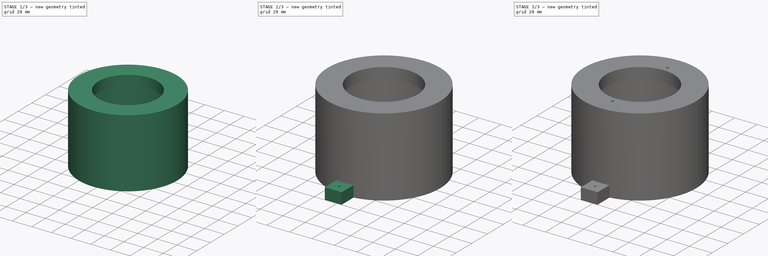
[diagram: build sequence overview — one tinted view per stage of 3, left to right]
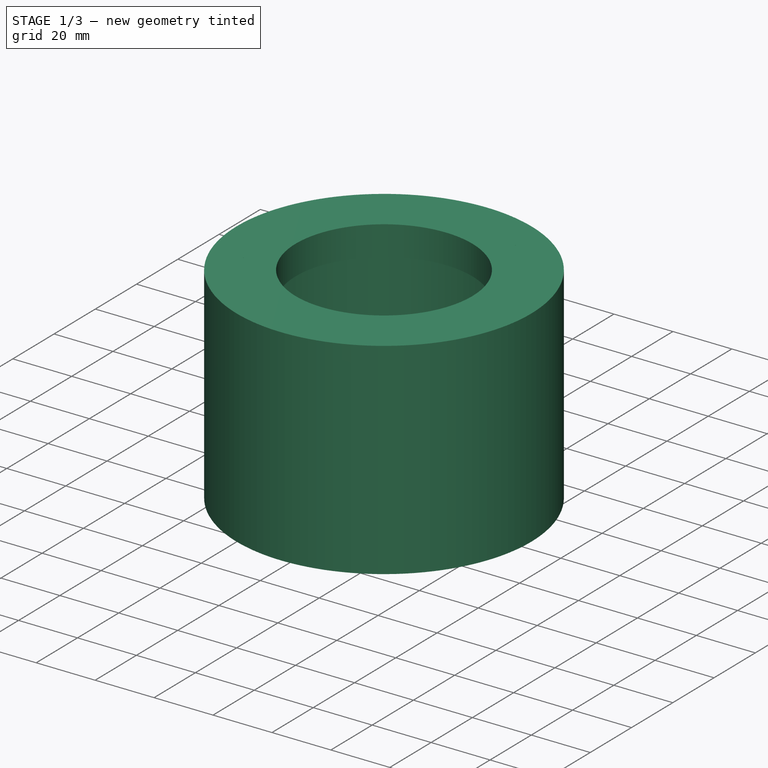
[diagram: stage 1 of 3 — iso view after this stage's code; geometry added in this stage tinted green]
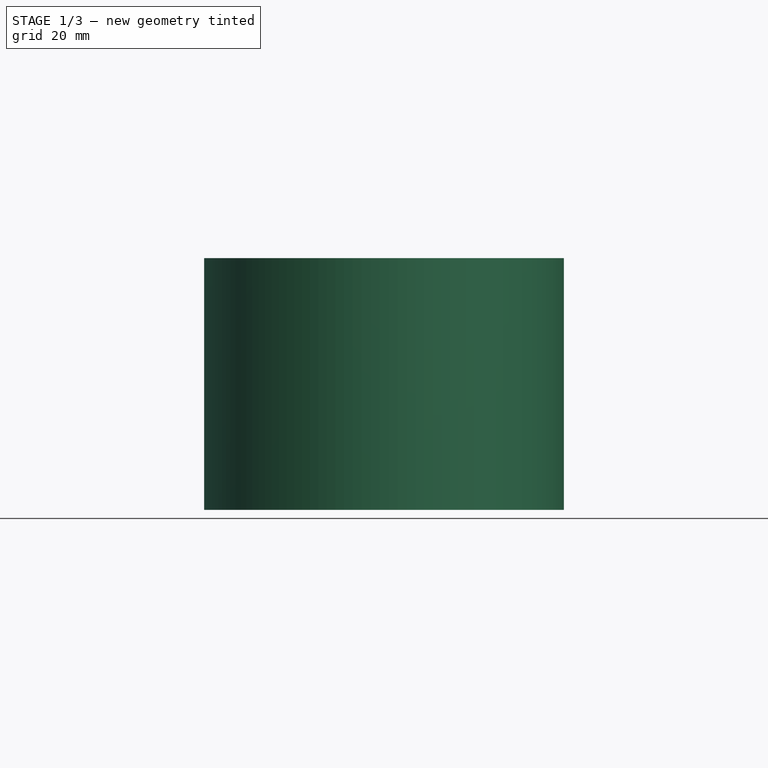
[diagram: stage 1 of 3 — front view after this stage's code; geometry added in this stage tinted green]
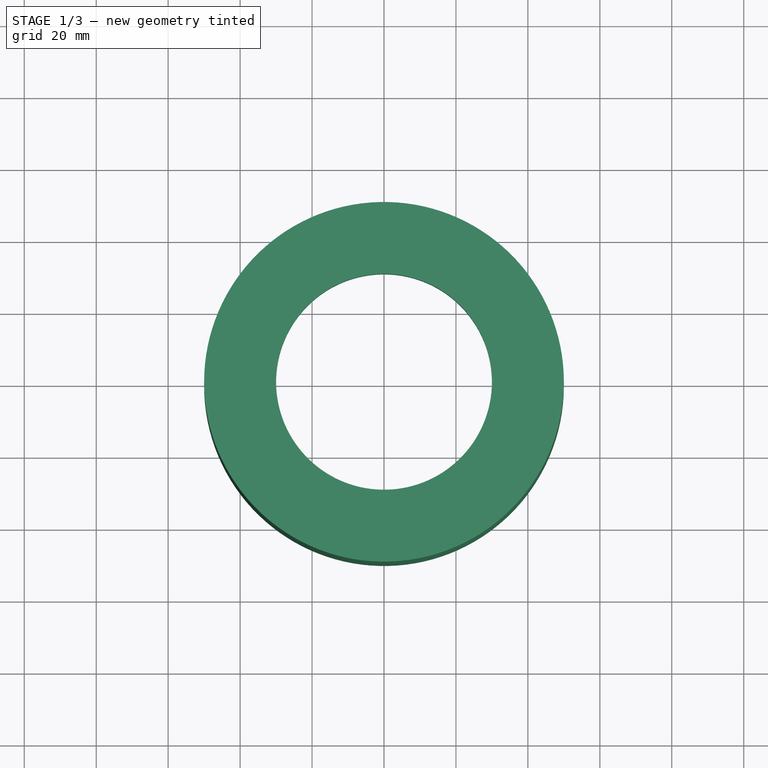
[diagram: stage 1 of 3 — top view after this stage's code; geometry added in this stage tinted green]
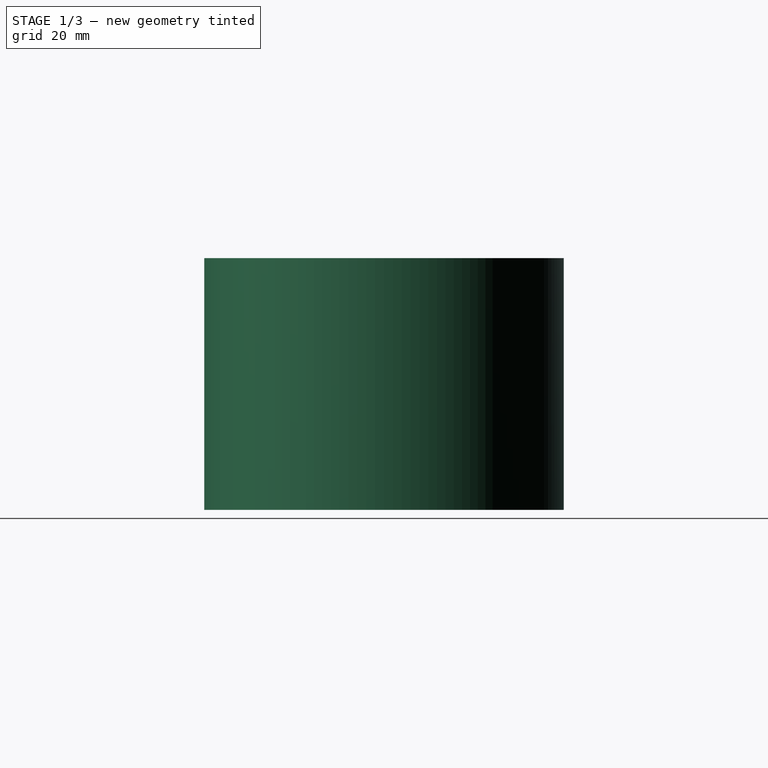
[diagram: stage 1 of 3 — right view after this stage's code; geometry added in this stage tinted green]
FCSTD DOCUMENT  (FreeCAD 0.20R29177 +426 (Git))
Label: BigRedButton
License: All rights reserved
LicenseURL: http://en.wikipedia.org/wiki/All_rights_reserved
objects: Part::FeaturePython×2, Sketcher::SketchObject×2, Part::Extrusion×2, Part::MultiFuse×2, Part::Cut×1
note: 9 computed .brp shape members not serialized (recipe doc carries the construction recipe); baked Part::Feature solids carry a one-line shape summary decoded from their .brp

FEATURE [Part::FeaturePython] Tube  # WARN: FeaturePython — macro-defined, semantics opaque (R4)
  AttacherType = Attacher::AttachEngine3D
  Height = 70
  InnerRadius = 40
  OuterRadius = 50
FEATURE [Part::FeaturePython] Tube001  # WARN: FeaturePython — macro-defined, semantics opaque (R4)
  AttacherType = Attacher::AttachEngine3D
  Height = 10
  InnerRadius = 30
  OuterRadius = 40
  Placement = pos=(0,0,60) rot=(0,0,1;0rad)
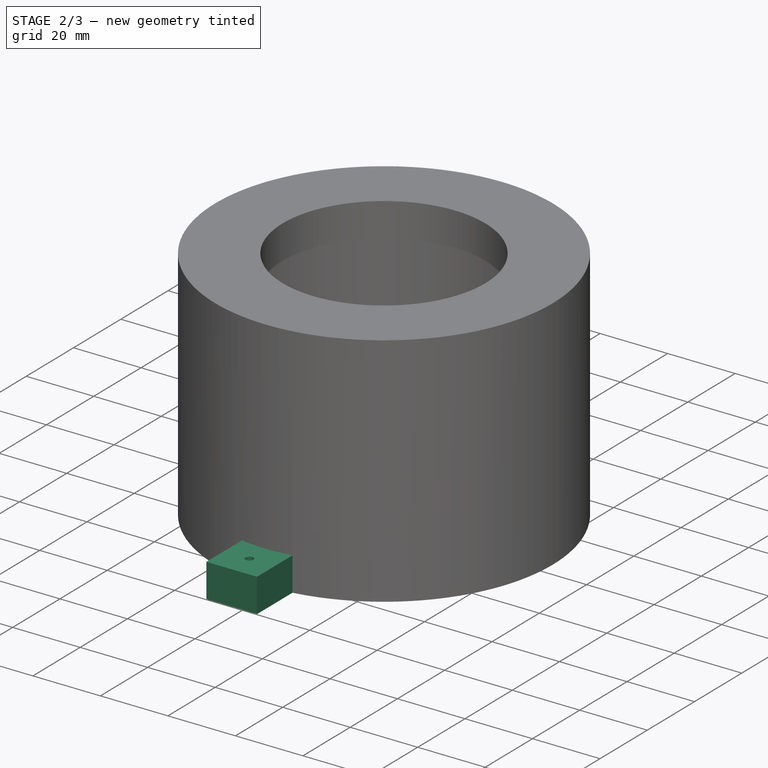
[diagram: stage 2 of 3 — iso view after this stage's code; geometry added in this stage tinted green]
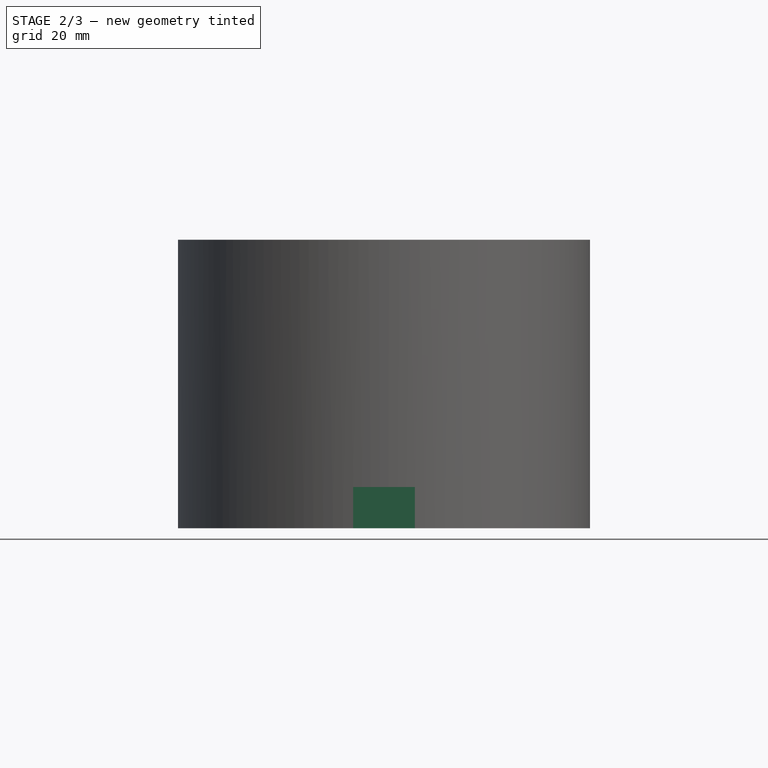
[diagram: stage 2 of 3 — front view after this stage's code; geometry added in this stage tinted green]
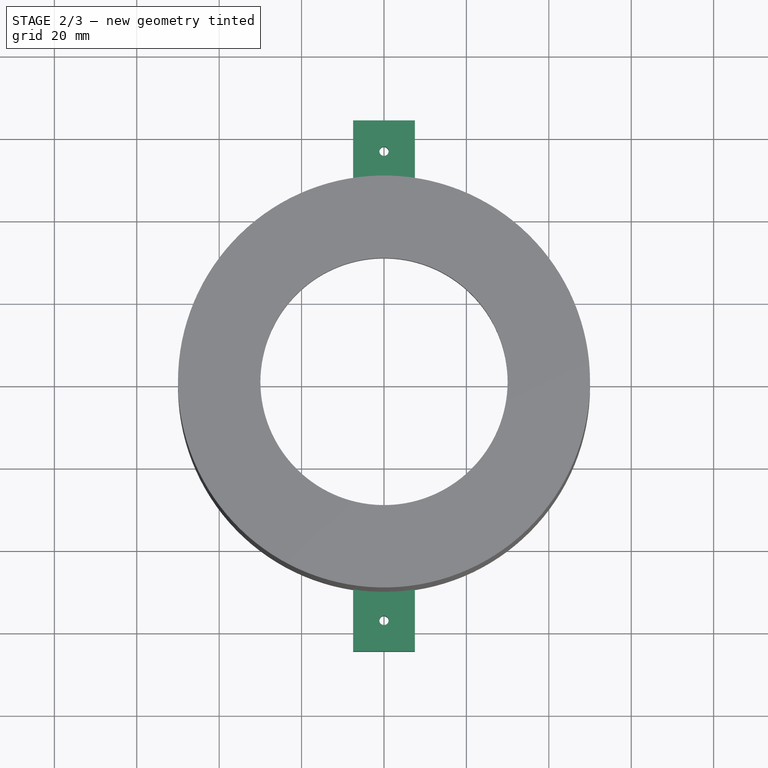
[diagram: stage 2 of 3 — top view after this stage's code; geometry added in this stage tinted green]
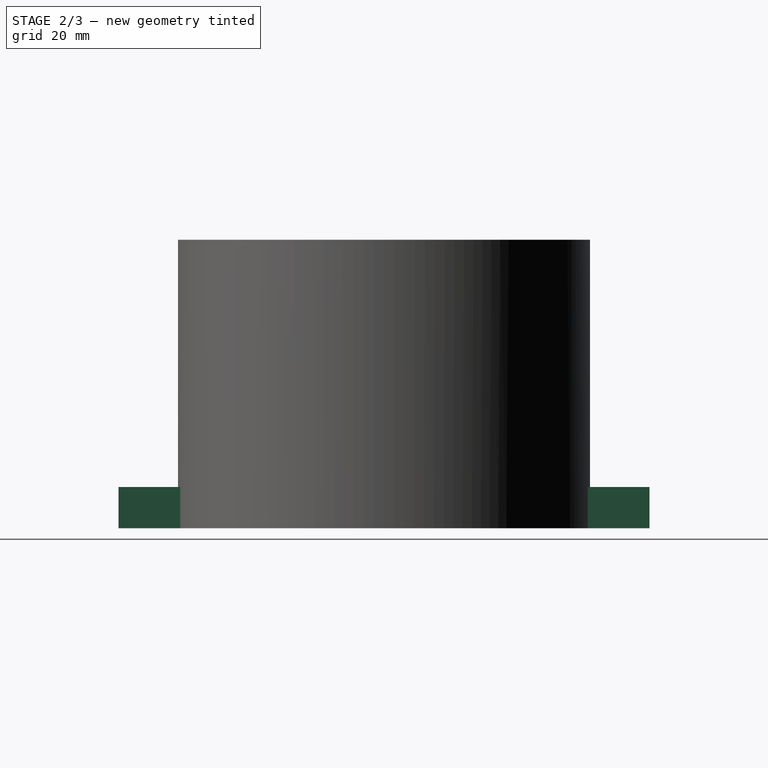
[diagram: stage 2 of 3 — right view after this stage's code; geometry added in this stage tinted green]
FEATURE [Sketcher::SketchObject] Sketch
  ExternalGeometry = -> [Tube]
  FullyConstrained = true
  MapMode = 5
  Placement = pos=(0,0,0) rot=(1,0,0;3.14159rad)
  Support = -> [Tube]
  sketch-geometry (18):
    g0: LineSegment StartX=7.5 StartY=49.4343 StartZ=0 EndX=7.5 EndY=64.4343 EndZ=0
    g1: LineSegment StartX=-7.5 StartY=64.4343 StartZ=0 EndX=-7.5 EndY=49.4343 EndZ=0
    g2: LineSegment StartX=7.5 StartY=64.4343 StartZ=0 EndX=-9.8e-15 EndY=64.4343 EndZ=0
    g3: LineSegment StartX=-9.8e-15 StartY=64.4343 StartZ=0 EndX=-7.5 EndY=64.4343 EndZ=0
    g4: LineSegment StartX=-7.5 StartY=49.4343 StartZ=0 EndX=-9.8e-15 EndY=49.4343 EndZ=0
    g5: LineSegment StartX=-9.8e-15 StartY=49.4343 StartZ=0 EndX=7.5 EndY=49.4343 EndZ=0
    g6: LineSegment StartX=-9.8e-15 StartY=64.4343 StartZ=0 EndX=-9.8e-15 EndY=56.9343 EndZ=0
    g7: LineSegment StartX=-9.8e-15 StartY=56.9343 StartZ=0 EndX=-9.8e-15 EndY=49.4343 EndZ=0
    g8: Circle CenterX=-9.8e-15 CenterY=56.9343 CenterZ=0 NormalX=0 NormalY=0 NormalZ=1 AngleXU=0 Radius=1.125
    g9: LineSegment StartX=7.5 StartY=-49.4343 StartZ=0 EndX=7.5 EndY=-64.4343 EndZ=0
    g10: LineSegment StartX=-7.5 StartY=-64.4343 StartZ=0 EndX=-7.5 EndY=-49.4343 EndZ=0
    g11: LineSegment StartX=-7.5 StartY=-49.4343 StartZ=0 EndX=8.9e-15 EndY=-49.4343 EndZ=0
    g12: LineSegment StartX=8.9e-15 StartY=-49.4343 StartZ=0 EndX=7.5 EndY=-49.4343 EndZ=0
    g13: LineSegment StartX=7.5 StartY=-64.4343 StartZ=0 EndX=8.9e-15 EndY=-64.4343 EndZ=0
    g14: LineSegment StartX=8.9e-15 StartY=-64.4343 StartZ=0 EndX=-7.5 EndY=-64.4343 EndZ=0
    g15: LineSegment StartX=8.9e-15 StartY=-64.4343 StartZ=0 EndX=8.9e-15 EndY=-56.9343 EndZ=0
    g16: LineSegment StartX=8.9e-15 StartY=-56.9343 StartZ=0 EndX=8.9e-15 EndY=-49.4343 EndZ=0
    g17: Circle CenterX=8.9e-15 CenterY=-56.9343 CenterZ=0 NormalX=0 NormalY=0 NormalZ=1 AngleXU=0 Radius=1.125
  constraints (50):
    c: Coincident(g5,g0)
    c: Coincident(g0,g2)
    c: Coincident(g3,g1)
    c: Coincident(g1,g4)
    c: Vertical(g0)
    c: Vertical(g1)
    c: PointOnObject(g4,g-3)
    c: PointOnObject(g5,g-3)
    c: Distance(g1) = 15
    c: Coincident(g2,g3)
    c: Horizontal(g2)
    c: Horizontal(g3)
    c: Coincident(g4,g5)
    c: Horizontal(g4)
    c: Horizontal(g5)
    c: Coincident(g6,g2)
    c: Coincident(g7,g4)
    c: Equal(g4,g5)
    c: Coincident(g6,g7)
    c: Vertical(g6)
    c: Vertical(g7)
    c: Equal(g6,g7)
    c: Coincident(g8,g6)
    c: Diameter(g8) = 2.25
    c: Distance(g3) = 7.5
    c: Coincident(g12,g9)
    c: Coincident(g9,g13)
    c: Coincident(g14,g10)
    c: Coincident(g10,g11)
    c: Vertical(g9)
    c: Vertical(g10)
    c: PointOnObject(g11,g-3)
    c: PointOnObject(g12,g-3)
    c: Distance(g9) = 15
    c: Coincident(g11,g12)
    c: Horizontal(g11)
    c: Horizontal(g12)
    c: Coincident(g13,g14)
    c: Horizontal(g13)
    c: Horizontal(g14)
    c: Coincident(g15,g13)
    c: Coincident(g16,g11)
    c: Coincident(g15,g16)
    c: Vertical(g15)
    c: Vertical(g16)
    c: Equal(g16,g15)
    c: Equal(g13,g14)
    c: Distance(g13) = 7.5
    c: Coincident(g17,g15)
    c: Diameter(g17) = 2.25
FEATURE [Part::Extrusion] Extrude
  Base = -> Sketch
  Dir = (0,0,-1)
  DirMode = 2
  FaceMakerClass = Part::FaceMakerBullseye
  LengthFwd = 0
  LengthRev = 10
  Solid = true
  Symmetric = false
FEATURE [Part::MultiFuse] Fusion
  Shapes = -> [Tube,Tube001]
FEATURE [Part::MultiFuse] Fusion001  label="BigRedButtonMount"
  Shapes = -> [Fusion,Extrude]
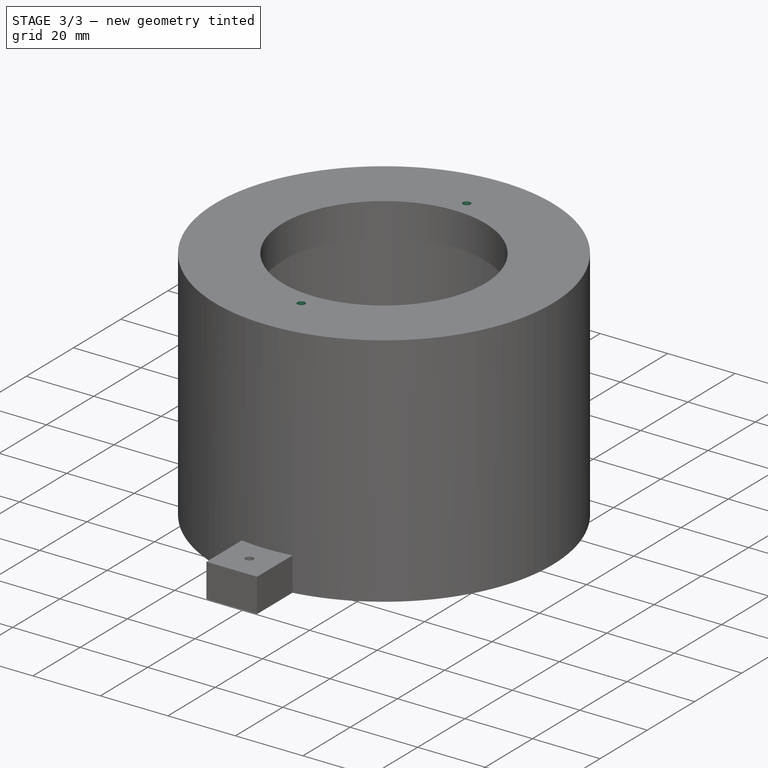
[diagram: stage 3 of 3 — iso view after this stage's code; geometry added in this stage tinted green]
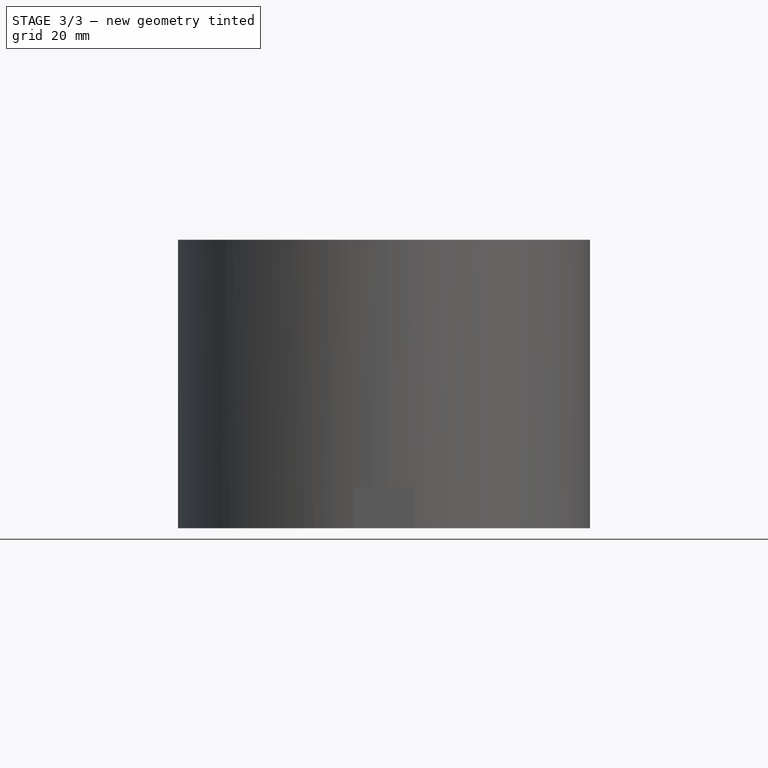
[diagram: stage 3 of 3 — front view after this stage's code; geometry added in this stage tinted green]
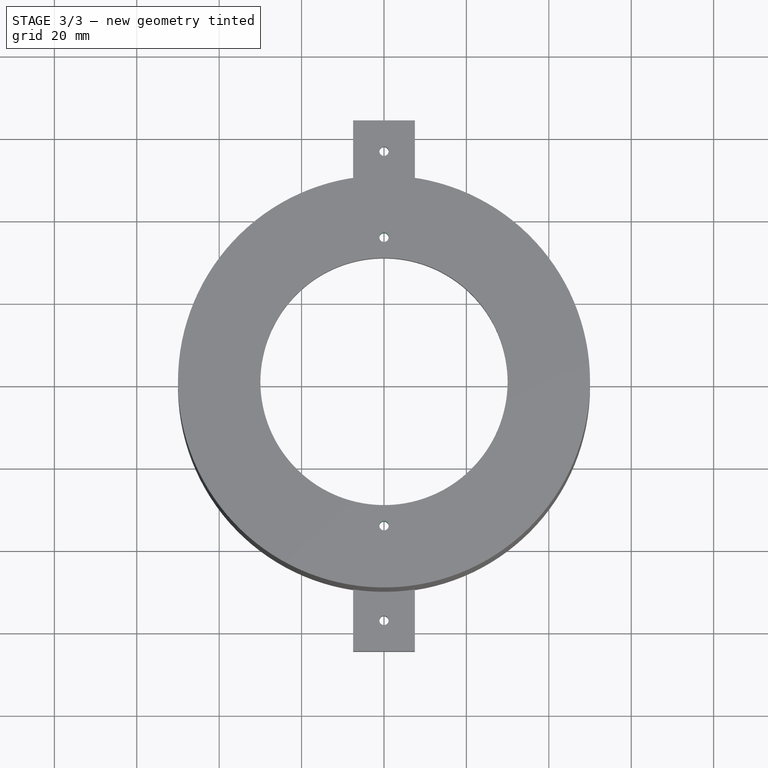
[diagram: stage 3 of 3 — top view after this stage's code; geometry added in this stage tinted green]
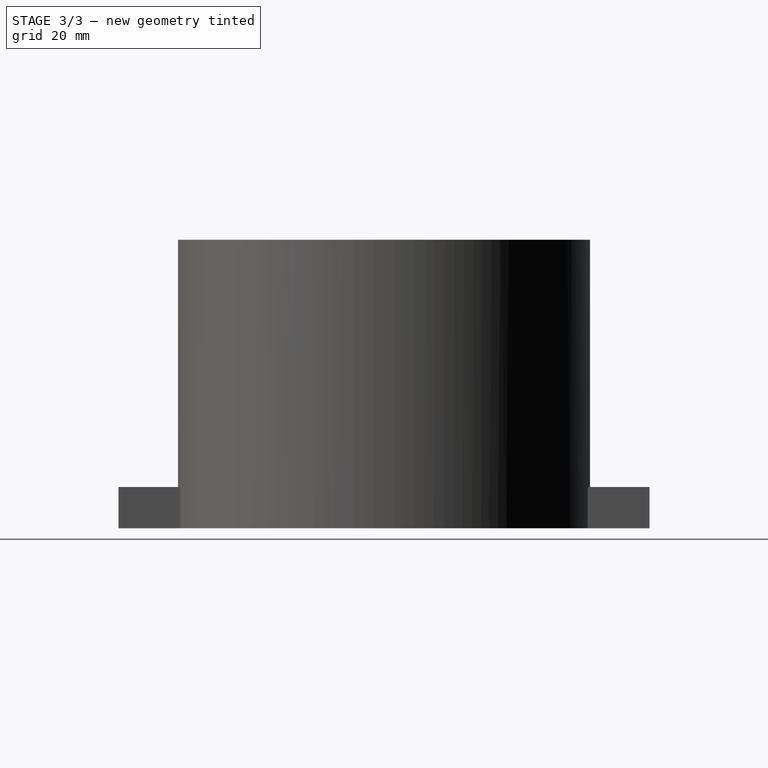
[diagram: stage 3 of 3 — right view after this stage's code; geometry added in this stage tinted green]
FEATURE [Sketcher::SketchObject] Sketch001
  ExternalGeometry = -> [Fusion001]
  FullyConstrained = true
  MapMode = 5
  Placement = pos=(0,0,70) rot=(0,0,1;0rad)
  Support = -> [Fusion001]
  sketch-geometry (6):
    g0: Circle CenterX=0 CenterY=35 CenterZ=0 NormalX=0 NormalY=0 NormalZ=1 AngleXU=0 Radius=1.125
    g1: LineSegment StartX=0 StartY=35 StartZ=0 EndX=0 EndY=40 EndZ=0
    g2: LineSegment StartX=0 StartY=35 StartZ=0 EndX=0 EndY=30 EndZ=0
    g3: Circle CenterX=0 CenterY=-35 CenterZ=0 NormalX=0 NormalY=0 NormalZ=1 AngleXU=0 Radius=1.125
    g4: LineSegment StartX=0 StartY=-35 StartZ=0 EndX=0 EndY=-30 EndZ=0
    g5: LineSegment StartX=0 StartY=-35 StartZ=0 EndX=0 EndY=-40 EndZ=0
  constraints (18):
    c: PointOnObject(g0,g-2)
    c: Coincident(g1,g0)
    c: PointOnObject(g1,g-3)
    c: Vertical(g1)
    c: Coincident(g2,g0)
    c: PointOnObject(g2,g-4)
    c: Vertical(g2)
    c: Equal(g1,g2)
    c: PointOnObject(g3,g-2)
    c: Coincident(g4,g3)
    c: PointOnObject(g4,g-4)
    c: Vertical(g4)
    c: Coincident(g5,g3)
    c: PointOnObject(g5,g-3)
    c: Vertical(g5)
    c: Equal(g5,g4)
    c: Diameter(g3) = 2.25
    c: Diameter(g0) = 2.25
FEATURE [Part::Extrusion] Extrude001
  Base = -> Sketch001
  Dir = (0,0,1)
  DirMode = 2
  FaceMakerClass = Part::FaceMakerBullseye
  LengthFwd = 0
  LengthRev = 10
  Solid = true
  Symmetric = false
FEATURE [Part::Cut] Cut  label="BigRedButtonMount001"
  Base = -> Fusion001
  Tool = -> Extrude001
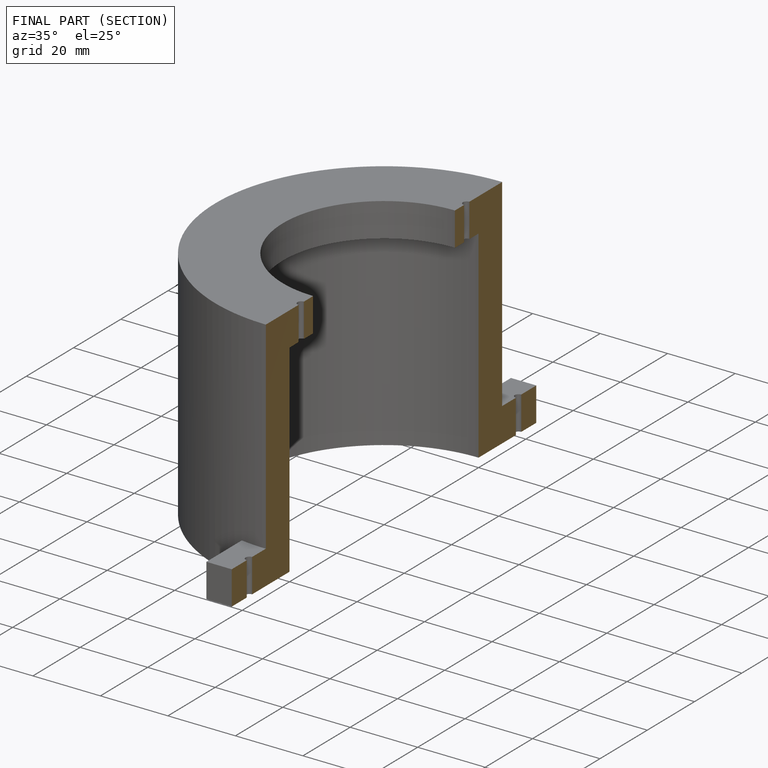
[diagram: finished part — half-section view (interior)]
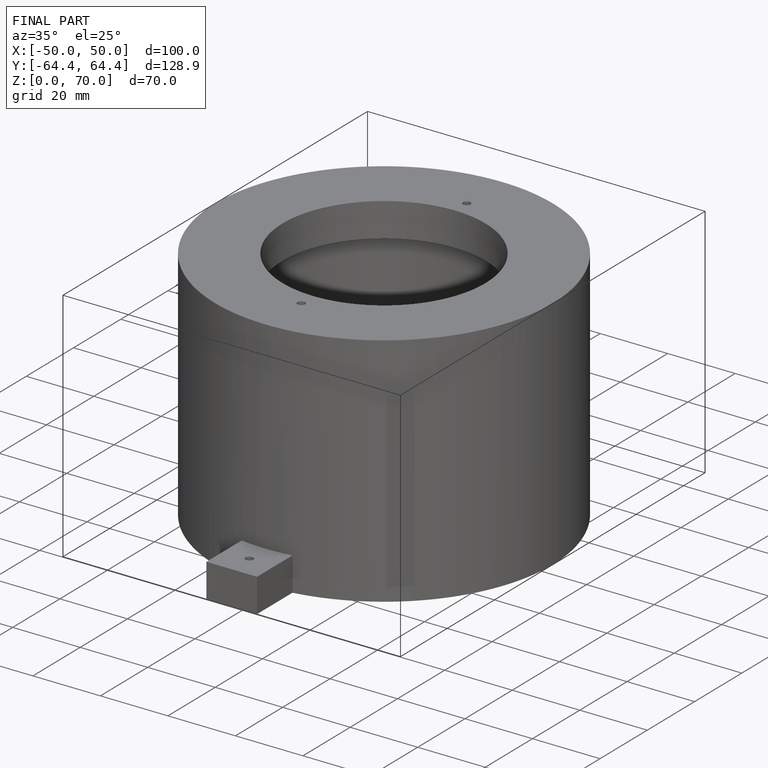
[diagram: finished part — iso view with bounding-box wireframe]
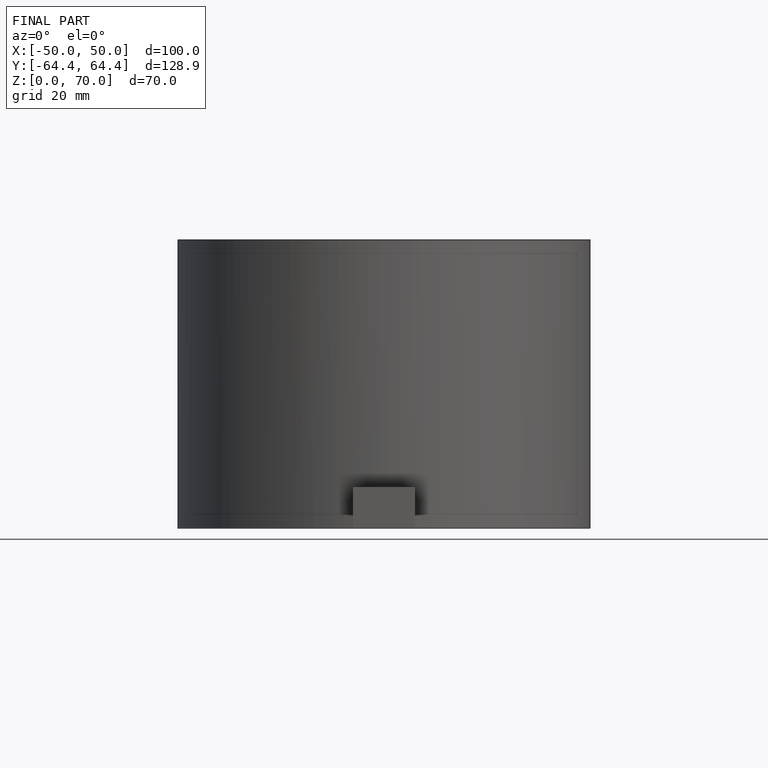
[diagram: finished part — front view with bounding-box wireframe]
